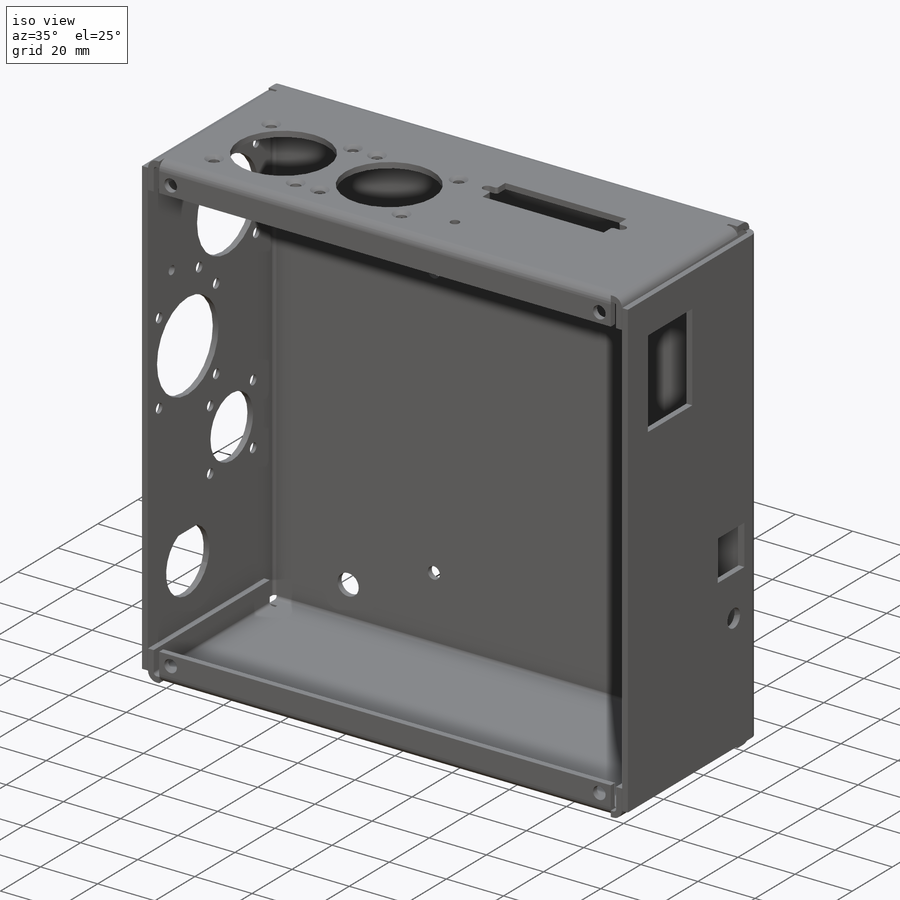
[diagram: iso view]
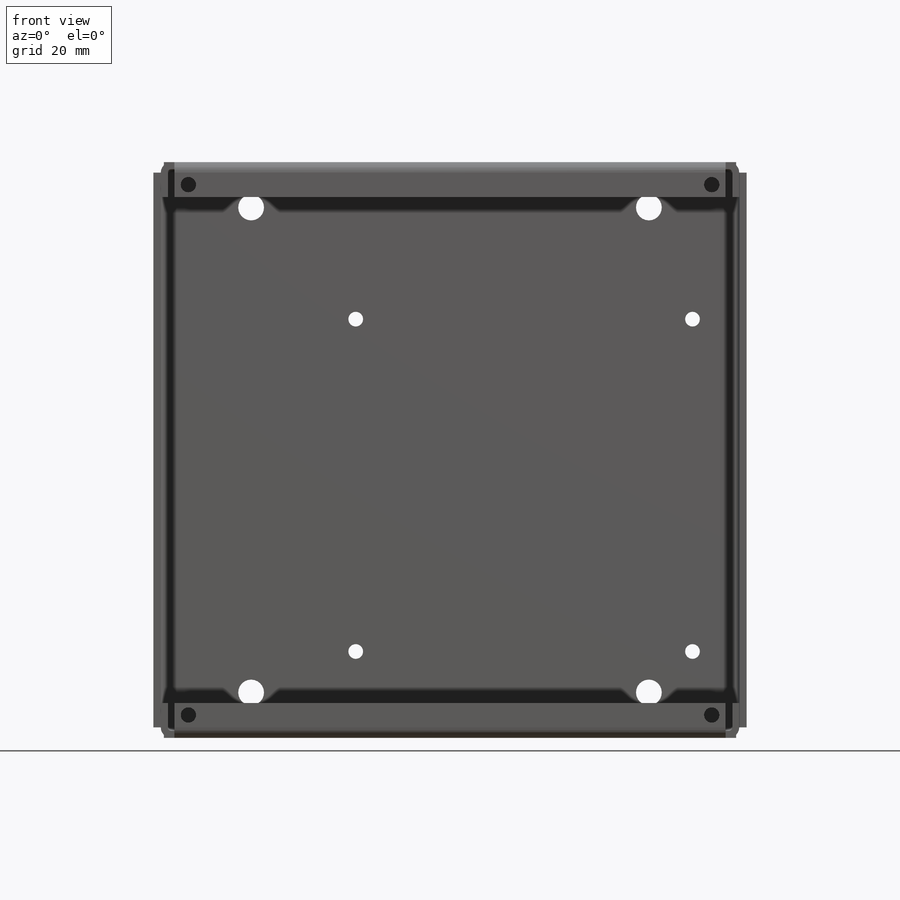
[diagram: front view]
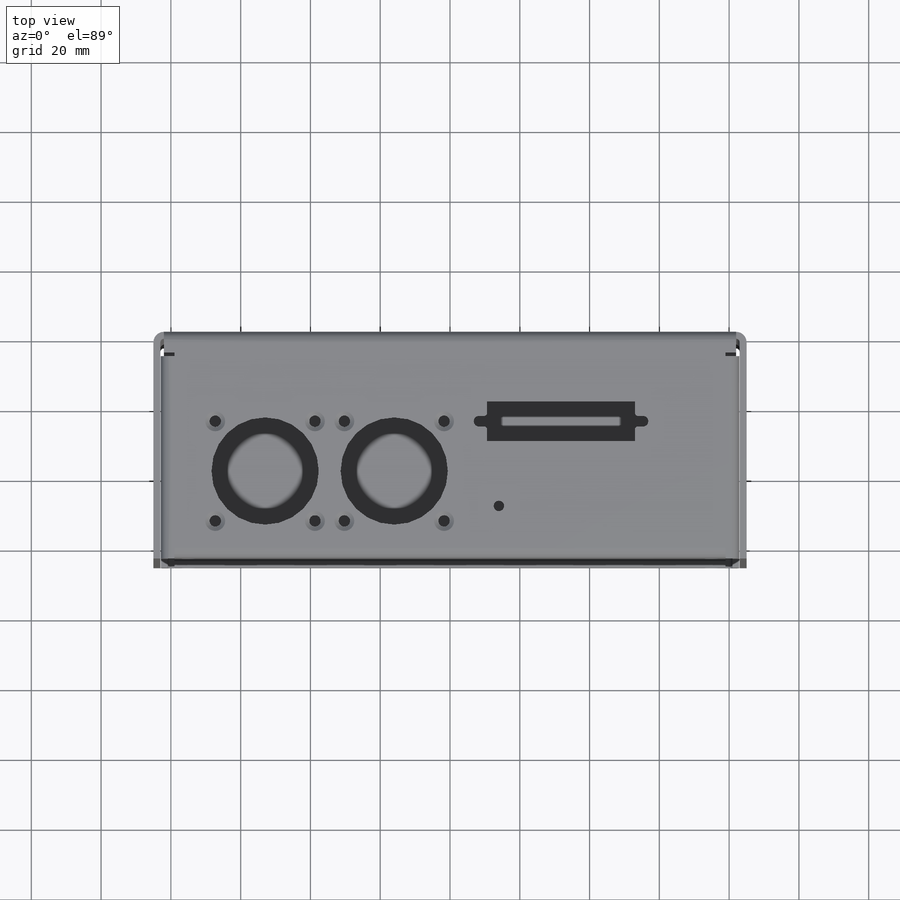
[diagram: top view]
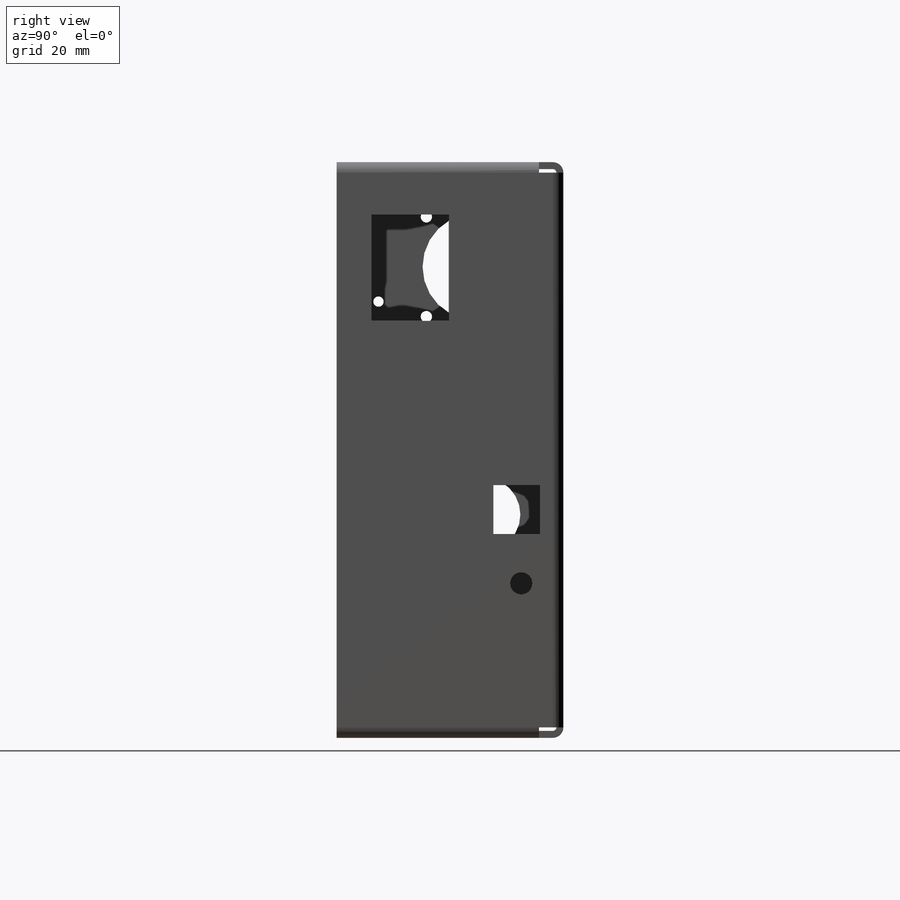
[diagram: right view]
SOLIDWORKS PART (.sldprt)
format: sldprt  version: not decoded by parser v0  size: 694,784 bytes
history: native  units: mm
features: sketch x14, cut_extrude x6, mirror x4, extrude x3, hole x2, material x1 (+11 scaffold rows collapsed)
feature tree (41):
  scaffold x11  (default folders/planes/origin — collapsed)
  material  "Material <not specified>"
  sketch  "Sketch1"  dims[c1.D1=145.0mm c1.D2=47.0mm c1.D3=10.0mm c2.D1=159.0mm c3.D1=164.0mm c3.D5=2.0mm c3.D6=1.0mm c3.D7=5.0mm]
  sketch  "Sketch16"  dims[D1=3.0mm D2=65.0mm D3=10.0mm]
  extrude  "Boss-Extrude3"  Depth=164mm
  mirror  "Mirror1"
  sketch  "Sketch18"  dims[D1=3.0mm D2=2.0mm]
  extrude  "Boss-Extrude4"  Depth=159mm
  mirror  "Mirror2"
  sketch  "Sketch19"  dims[D1=3.0mm]
  cut_extrude  "Cut-Extrude1"  Depth=4mm
  sketch  "Sketch20"  dims[D4=2.0mm D1=0.1mm D2=2.0mm D3=7.0mm]
  extrude  "Boss-Extrude5"  Depth=1mm
  mirror  "Mirror3"
  mirror  "Mirror4"
  sketch  "Sketch21"  dims[c1.D3=4.22mm c1.D6=7.39mm c1.D1=96.52mm c1.D2=95.25mm c1.D4=15.5mm c1.D5=45.0mm c1.D7=142.0mm c1.D8=150.0mm c2.D4=15.5mm c2.D7=28.0mm c2.D8=28.0mm c2.D9=13.0mm c2.D10=13.0mm]
  cut_extrude  "Cut-Extrude2"  [1 undecoded]
  sketch  "Sketch22"  dims[c1.D5=6.35mm c1.D8=21.336mm c1.D9=2.5mm c1.D15=30.734mm c1.D19=2.0mm c2.D5=10.8mm c2.D12=29.0mm c2.D16=3.0mm c2.D1=1.0mm c2.D2=1.0mm c2.D3=1.0mm c2.D4=1.0mm c2.D6=21.44mm c2.D7=21.44mm c2.D10=23.0mm c2.D11=102.0mm c3.D3=13.303mm c3.D2=1.0mm c4.D3=1.0mm c4.D4=1.0mm c4.D12=1.0mm c4.D13=91.0mm c4.D14=37.0mm c4.D16=18.0mm c4.D17=28.575mm c4.D18=28.575mm c4.D20=28.575mm c4.D21=28.575mm c5.D3=35.0mm c5.D4=2.5mm c5.D5=14.2mm c5.D11=5.6mm c5.D12=1.6mm c5.D16=10.0mm c5.D22=4.0mm c5.D23=14.0mm c6.D3=37.0mm c6.D4=20.2mm c6.D11=29.0mm c6.D22=30.0mm c6.D23=18.5mm c6.D24=14.29mm c7.D22=12.0mm c7.D25=30.0mm c7.D26=37.0mm c7.D3=34.0mm c7.D27=45.0mm c7.D14=25.0mm c7.D23=30.0mm c8.D25=45.0mm c8.D26=40.0mm c8.D13=37.0mm c8.D11=30.0mm c8.D4=9.7mm]
  cut_extrude  "Cut-Extrude3"  Depth=3mm
  sketch  "Sketch23"  dims[D5=0.8128mm D8=30.734mm D9=2.0mm D16=3.0mm D1=42.4mm D2=11.43mm D3=32.0mm D4=20.0mm D6=47.0mm D7=3.048mm D10=32.0mm D11=37.0mm D12=40.0mm D13=28.575mm D14=28.575mm D15=28.575mm D17=30.0mm D18=10.0mm]
  cut_extrude  "Cut-Extrude4"  Depth=3mm
  hole  "CSK for #4 Flat Head Machine Screw (100)1"  Diameter=3.2639mm Depth=10mm
  sketch  "Sketch25"
  sketch  "Sketch24"  dims[hole-wizard template sketch: 39 standard entries collapsed; hole parameters kept: c13.Hole Dia.=3.2639mm c13.Hole Depth=10.0mm c13.Near C'Sink Dia.=5.715mm c13.D4=~33.297463mm c13.Near C'Sink Angle=100.0deg c14.D5=~14.816244mm c14.Drill Angle=118.0deg]
  sketch  "Sketch26"  dims[D5=4.39mm D1=152.0mm D2=150.0mm D3=3.5mm D4=4.0mm]
  cut_extrude  "Cut-Extrude5"  Depth=10mm
  sketch  "Sketch27"  dims[D4=6.35mm D1=22.15mm D2=30.5mm D3=15.0mm D5=1.0mm D6=1.0mm D7=1.0mm D8=1.0mm D9=10.0mm]
  cut_extrude  "Cut-Extrude6"  Depth=10mm
  hole  "CSK for #4 Flat Head Machine Screw (100)2"  Diameter=3.2639mm Depth=10mm
  sketch  "Sketch29"
  sketch  "Sketch28"  dims[hole-wizard template sketch: 39 standard entries collapsed; hole parameters kept: c13.Hole Dia.=3.2639mm c13.Hole Depth=10.0mm c13.Near C'Sink Dia.=5.715mm c13.D4=~33.297463mm c13.Near C'Sink Angle=100.0deg c14.D5=~14.816244mm c14.Drill Angle=118.0deg]
decode coverage: 22 of 29 modeling features carry decoded parameters
note: ~ marks probable driven/reference dimensions
note: 1 parameter value undecoded
note: suppression state not decoded; provenance and decode notes live in map.json
